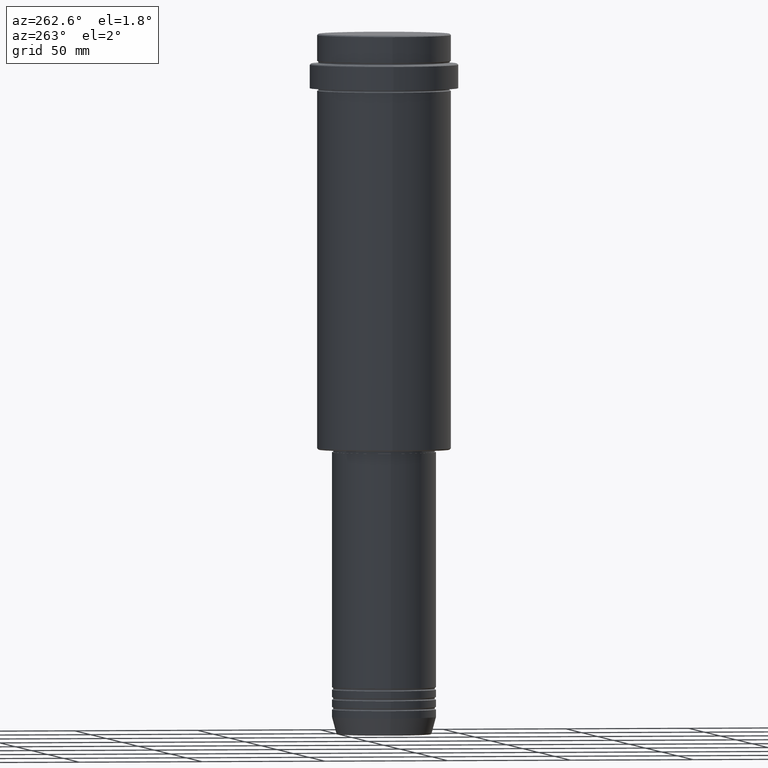
[diagram: clean part render]
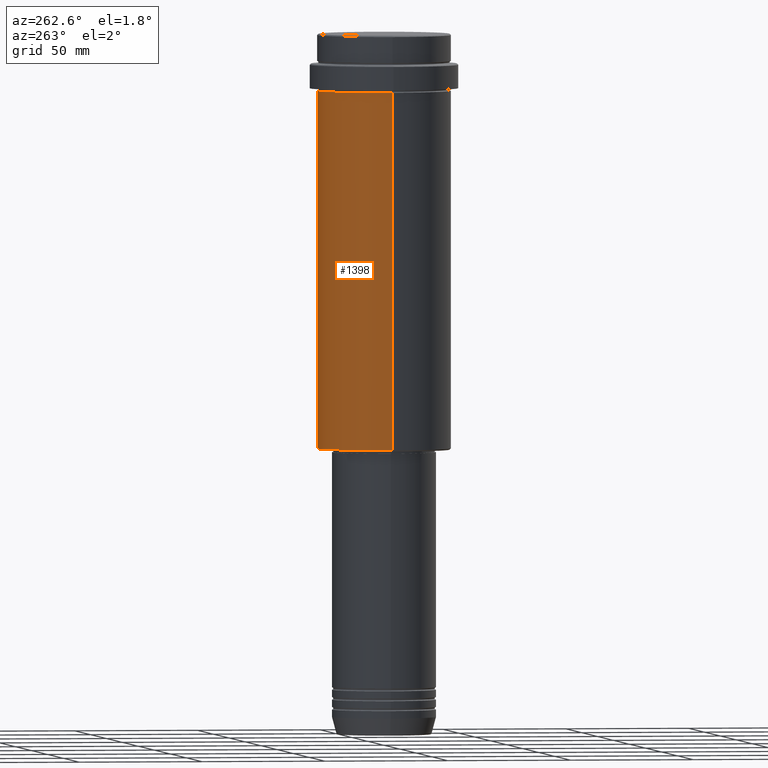
[diagram: same view with one face highlighted and labeled with its STEP entity id]
A machine part, auxiliary view. The second image highlights one B-rep face of the part: STEP entity #1398.
In plain terms, the highlighted cylindrical surface (partial cylindrical patch) has radius 27 mm, axis along (-0, -0, 1).
Its self-contained STEP definition (entity closure, byte-faithful):
#5 = CARTESIAN_POINT ( 'NONE',  ( 0.000000000000000000, 0.000000000000000000, 0.000000000000000000 ) ) ;
#34 = VECTOR ( 'NONE', #77, 1000.000000000000000 ) ;
#77 = DIRECTION ( 'NONE',  ( -0.000000000000000000, -0.000000000000000000, 1.000000000000000000 ) ) ;
#95 = VERTEX_POINT ( 'NONE', #966 ) ;
#118 = FACE_OUTER_BOUND ( 'NONE', #1104, .T. ) ;
#175 = EDGE_CURVE ( 'NONE', #821, #1207, #819, .T. ) ;
#192 = CIRCLE ( 'NONE', #491, 26.99999999999999645 ) ;
#251 = ORIENTED_EDGE ( 'NONE', *, *, #284, .T. ) ;
#255 = DIRECTION ( 'NONE',  ( -0.000000000000000000, -0.000000000000000000, 1.000000000000000000 ) ) ;
#284 = EDGE_CURVE ( 'NONE', #382, #821, #192, .T. ) ;
#382 = VERTEX_POINT ( 'NONE', #1321 ) ;
#417 = CARTESIAN_POINT ( 'NONE',  ( 26.99999999999999645, 0.000000000000000000, 0.000000000000000000 ) ) ;
#470 = VECTOR ( 'NONE', #938, 1000.000000000000000 ) ;
#491 = AXIS2_PLACEMENT_3D ( 'NONE', #1234, #255, #588 ) ;
#541 = AXIS2_PLACEMENT_3D ( 'NONE', #1114, #1094, #995 ) ;
#571 = DIRECTION ( 'NONE',  ( -0.000000000000000000, -0.000000000000000000, 1.000000000000000000 ) ) ;
#588 = DIRECTION ( 'NONE',  ( -1.000000000000000000, 0.000000000000000000, 0.000000000000000000 ) ) ;
#651 = AXIS2_PLACEMENT_3D ( 'NONE', #5, #571, #1005 ) ;
#819 = LINE ( 'NONE', #1165, #470 ) ;
#821 = VERTEX_POINT ( 'NONE', #1393 ) ;
#938 = DIRECTION ( 'NONE',  ( -0.000000000000000000, -0.000000000000000000, 1.000000000000000000 ) ) ;
#949 = LINE ( 'NONE', #417, #34 ) ;
#961 = CARTESIAN_POINT ( 'NONE',  ( -26.99999999999999645, 3.306546357697853339E-15, -23.00000000000000000 ) ) ;
#966 = CARTESIAN_POINT ( 'NONE',  ( 26.99999999999999645, 0.000000000000000000, -23.00000000000000000 ) ) ;
#981 = CYLINDRICAL_SURFACE ( 'NONE', #651, 26.99999999999999645 ) ;
#995 = DIRECTION ( 'NONE',  ( 1.000000000000000000, 0.000000000000000000, 0.000000000000000000 ) ) ;
#1005 = DIRECTION ( 'NONE',  ( 1.000000000000000000, 0.000000000000000000, 0.000000000000000000 ) ) ;
#1094 = DIRECTION ( 'NONE',  ( -0.000000000000000000, -0.000000000000000000, 1.000000000000000000 ) ) ;
#1097 = EDGE_CURVE ( 'NONE', #382, #95, #949, .T. ) ;
#1104 = EDGE_LOOP ( 'NONE', ( #251, #1396, #1276, #1417 ) ) ;
#1114 = CARTESIAN_POINT ( 'NONE',  ( 0.000000000000000000, 0.000000000000000000, -23.00000000000000000 ) ) ;
#1165 = CARTESIAN_POINT ( 'NONE',  ( -26.99999999999999645, 3.306546357697853339E-15, 0.000000000000000000 ) ) ;
#1207 = VERTEX_POINT ( 'NONE', #961 ) ;
#1212 = CIRCLE ( 'NONE', #541, 26.99999999999999645 ) ;
#1234 = CARTESIAN_POINT ( 'NONE',  ( 0.000000000000000000, 0.000000000000000000, -167.5000000000000853 ) ) ;
#1276 = ORIENTED_EDGE ( 'NONE', *, *, #1386, .F. ) ;
#1321 = CARTESIAN_POINT ( 'NONE',  ( 26.99999999999999645, 0.000000000000000000, -167.5000000000000853 ) ) ;
#1386 = EDGE_CURVE ( 'NONE', #95, #1207, #1212, .T. ) ;
#1393 = CARTESIAN_POINT ( 'NONE',  ( -26.99999999999999645, 3.306546357697853339E-15, -167.5000000000000853 ) ) ;
#1396 = ORIENTED_EDGE ( 'NONE', *, *, #175, .T. ) ;
#1398 = ADVANCED_FACE ( 'NONE', ( #118 ), #981, .T. ) ;
#1417 = ORIENTED_EDGE ( 'NONE', *, *, #1097, .F. ) ;